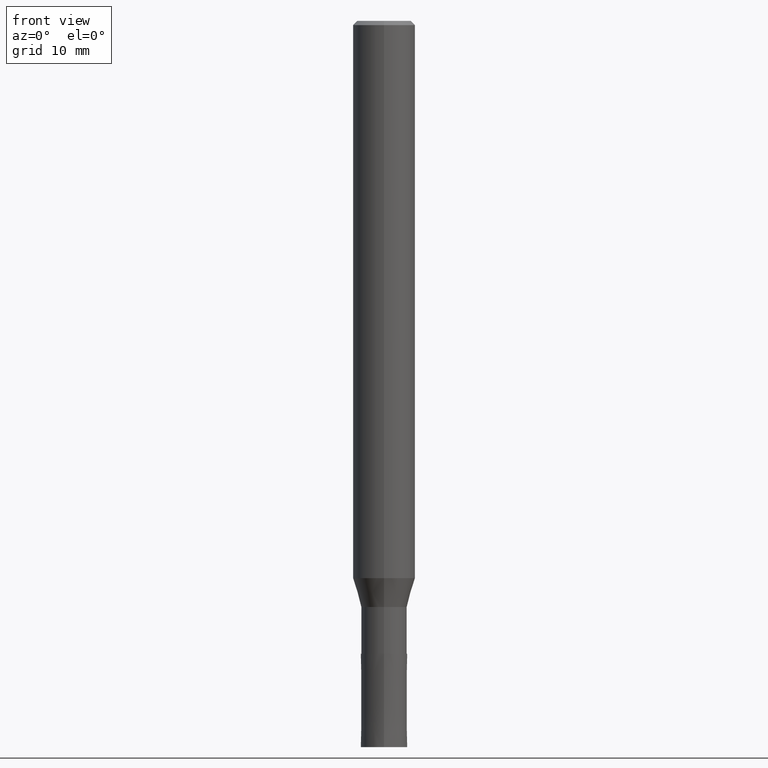
[diagram: clean part render]
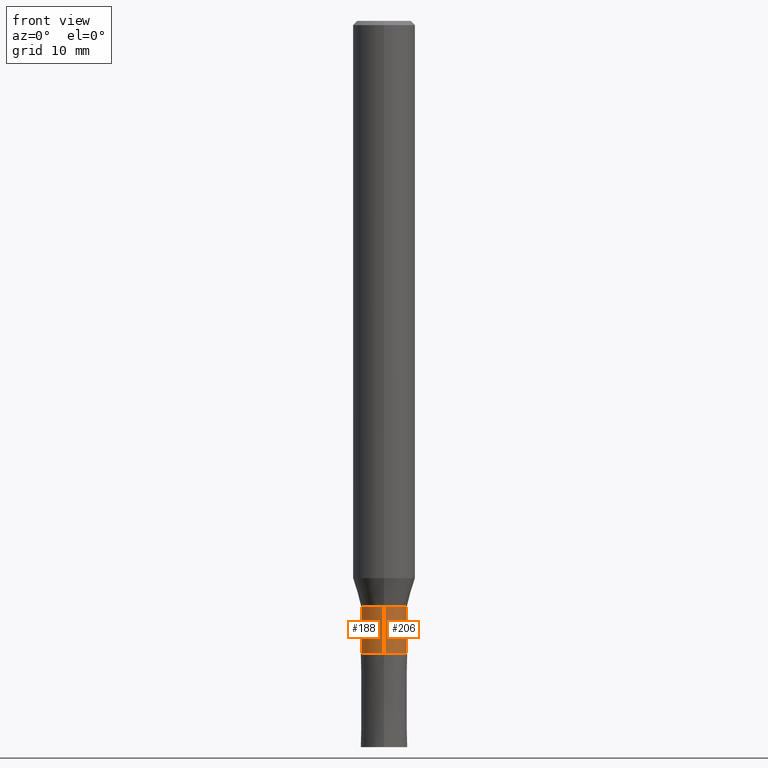
[diagram: same view with one multi-face feature highlighted, each face labeled with its STEP entity id]
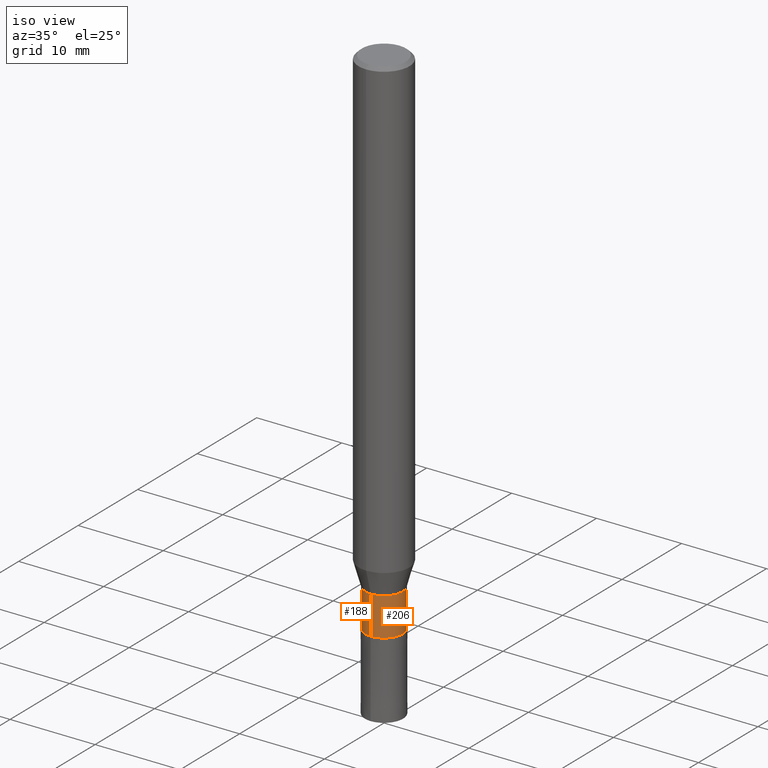
[diagram: same view with one multi-face feature highlighted, each face labeled with its STEP entity id]
A machine part, front view. The highlighted faces form ONE feature: a constant-radius fillet chain: 2 tangent blend faces with common blend radius 2.1999 mm. The faces share edges in the B-rep.
A second angle (iso view) of the same feature is appended — it is thin or edge-on in the first view.
Their STEP definitions:
[1] entity #206 (Cylinder):
#120=EDGE_CURVE('',#196,#156,#258,.T.);
#130=EDGE_CURVE('',#178,#204,#270,.T.);
#156=VERTEX_POINT('',#299);
#168=EDGE_CURVE('',#156,#204,#313,.T.);
#176=EDGE_CURVE('',#178,#196,#323,.T.);
#178=VERTEX_POINT('',#325);
#196=VERTEX_POINT('',#347);
#204=VERTEX_POINT('',#356);
#206=ADVANCED_FACE('',(#358),#359,.T.);
#258=CIRCLE('',#414,2.19995);
#270=CIRCLE('',#430,2.19995);
#299=CARTESIAN_POINT('',(2.69407274809154E-016,-2.19995,-61.0));
#313=LINE('',#483,#484);
#323=LINE('',#496,#497);
#325=CARTESIAN_POINT('',(0.0,2.19995,-56.5));
#347=CARTESIAN_POINT('',(0.0,2.19995,-61.0));
#356=CARTESIAN_POINT('',(2.69407274809154E-016,-2.19995,-56.5));
#358=FACE_OUTER_BOUND('',#536,.T.);
#359=CYLINDRICAL_SURFACE('',#537,2.19995);
#414=AXIS2_PLACEMENT_3D('',#567,#568,#569);
#430=AXIS2_PLACEMENT_3D('',#588,#589,#590);
#483=CARTESIAN_POINT('',(2.69407274809154E-016,-2.19995,-58.75));
#484=VECTOR('',#644,1.0);
#496=CARTESIAN_POINT('',(-2.69407274809154E-016,2.19995,-58.75));
#497=VECTOR('',#664,1.0);
#536=EDGE_LOOP('',(#704,#705,#706,#707));
#537=AXIS2_PLACEMENT_3D('',#708,#709,#710);
#567=CARTESIAN_POINT('',(0.0,0.0,-61.0));
#568=DIRECTION('',(0.0,0.0,-1.0));
#569=DIRECTION('',(0.0,1.0,0.0));
#588=CARTESIAN_POINT('',(0.0,0.0,-56.5));
#589=DIRECTION('',(0.0,0.0,-1.0));
#590=DIRECTION('',(0.0,1.0,0.0));
#644=DIRECTION('',(-0.0,-0.0,1.0));
#664=DIRECTION('',(0.0,0.0,-1.0));
#704=ORIENTED_EDGE('',*,*,#176,.F.);
#705=ORIENTED_EDGE('',*,*,#130,.T.);
#706=ORIENTED_EDGE('',*,*,#168,.F.);
#707=ORIENTED_EDGE('',*,*,#120,.F.);
#708=CARTESIAN_POINT('',(0.0,0.0,-58.75));
#709=DIRECTION('',(-0.0,-0.0,1.0));
#710=DIRECTION('',(0.0,1.0,0.0));
[2] entity #188 (Cylinder):
#98=EDGE_CURVE('',#156,#196,#235,.T.);
#156=VERTEX_POINT('',#299);
#166=EDGE_CURVE('',#204,#178,#311,.T.);
#168=EDGE_CURVE('',#156,#204,#313,.T.);
#176=EDGE_CURVE('',#178,#196,#323,.T.);
#178=VERTEX_POINT('',#325);
#188=ADVANCED_FACE('',(#338),#339,.T.);
#196=VERTEX_POINT('',#347);
#204=VERTEX_POINT('',#356);
#235=CIRCLE('',#381,2.19995);
#299=CARTESIAN_POINT('',(2.69407274809154E-016,-2.19995,-61.0));
#311=CIRCLE('',#480,2.19995);
#313=LINE('',#483,#484);
#323=LINE('',#496,#497);
#325=CARTESIAN_POINT('',(0.0,2.19995,-56.5));
#338=FACE_OUTER_BOUND('',#514,.T.);
#339=CYLINDRICAL_SURFACE('',#515,2.19995);
#347=CARTESIAN_POINT('',(0.0,2.19995,-61.0));
#356=CARTESIAN_POINT('',(2.69407274809154E-016,-2.19995,-56.5));
#381=AXIS2_PLACEMENT_3D('',#546,#547,#548);
#480=AXIS2_PLACEMENT_3D('',#641,#642,#643);
#483=CARTESIAN_POINT('',(2.69407274809154E-016,-2.19995,-58.75));
#484=VECTOR('',#644,1.0);
#496=CARTESIAN_POINT('',(-2.69407274809154E-016,2.19995,-58.75));
#497=VECTOR('',#664,1.0);
#514=EDGE_LOOP('',(#683,#684,#685,#686));
#515=AXIS2_PLACEMENT_3D('',#687,#688,#689);
#546=CARTESIAN_POINT('',(0.0,0.0,-61.0));
#547=DIRECTION('',(0.0,0.0,-1.0));
#548=DIRECTION('',(0.0,1.0,0.0));
#641=CARTESIAN_POINT('',(0.0,0.0,-56.5));
#642=DIRECTION('',(0.0,0.0,-1.0));
#643=DIRECTION('',(0.0,1.0,0.0));
#644=DIRECTION('',(-0.0,-0.0,1.0));
#664=DIRECTION('',(0.0,0.0,-1.0));
#683=ORIENTED_EDGE('',*,*,#176,.T.);
#684=ORIENTED_EDGE('',*,*,#98,.F.);
#685=ORIENTED_EDGE('',*,*,#168,.T.);
#686=ORIENTED_EDGE('',*,*,#166,.T.);
#687=CARTESIAN_POINT('',(0.0,0.0,-58.75));
#688=DIRECTION('',(-0.0,-0.0,1.0));
#689=DIRECTION('',(0.0,1.0,0.0));